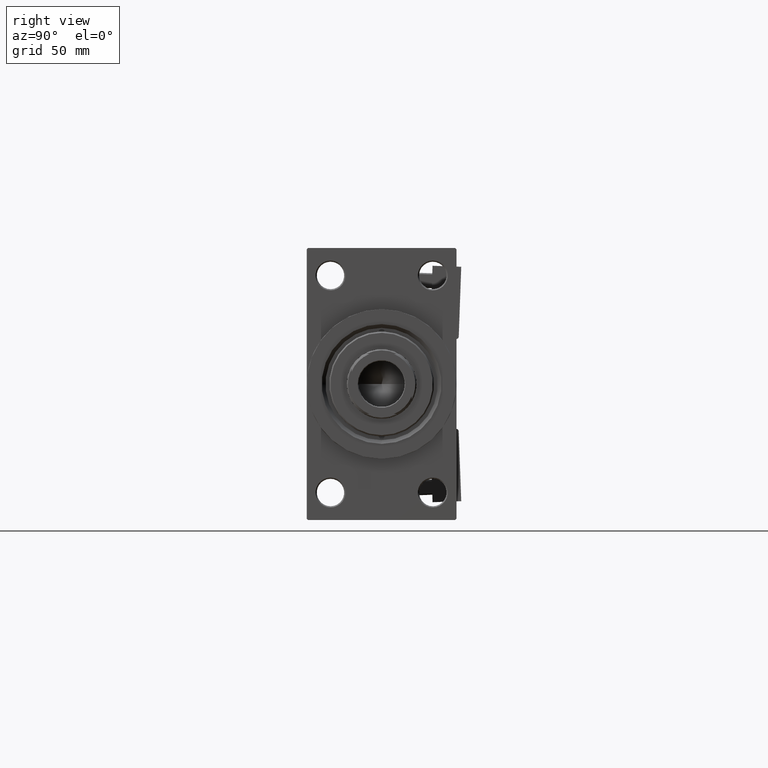
[diagram: clean part render]
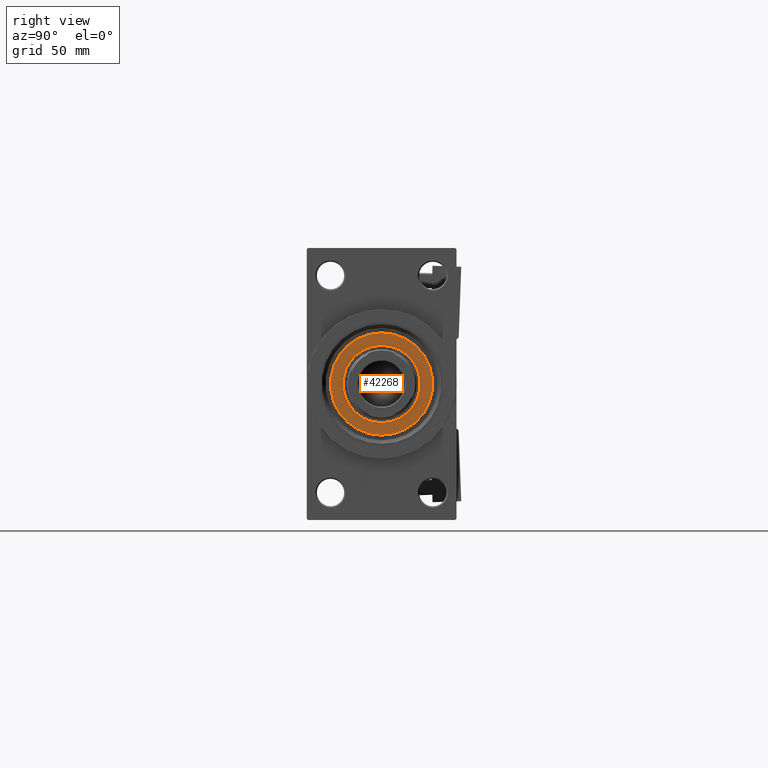
[diagram: same view with one face highlighted and labeled with its STEP entity id]
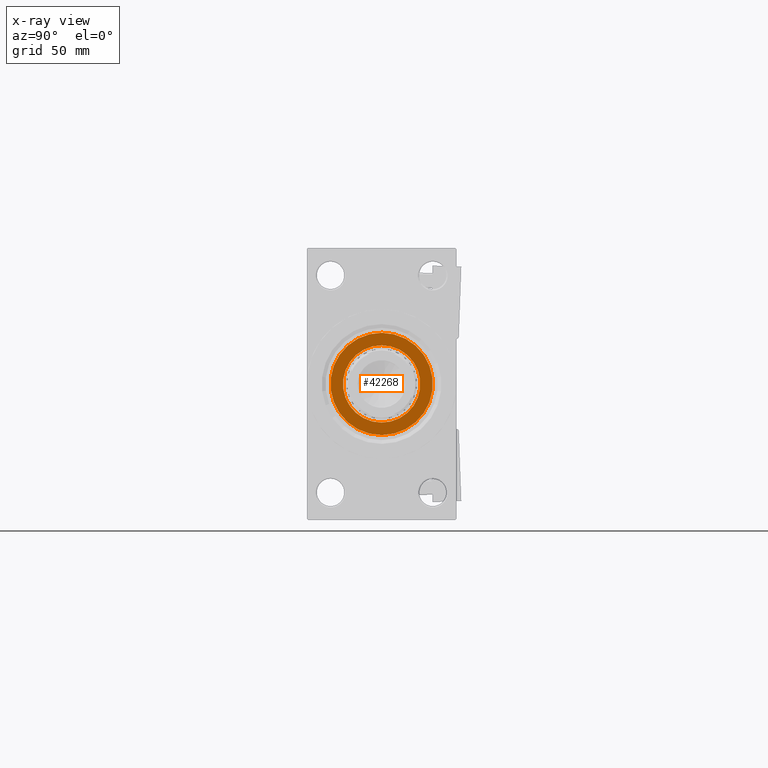
[diagram: x-ray of the same camera — body ghosted, the highlighted face saturated]
A machine part, right view. The second image highlights one B-rep face of the part: STEP entity #42268.
The next image is the same camera in x-ray: the body ghosted, the highlighted face saturated — about 0% of this face is hidden behind the body in this view.
In plain terms, the highlighted planar face has unit normal (1, -0, -0).
Its self-contained STEP definition (entity closure, byte-faithful):
#638 = DIRECTION ( 'NONE',  ( 0.000000000000000000, 0.000000000000000000, 1.000000000000000000 ) ) ;
#3065 = EDGE_CURVE ( 'NONE', #3993, #15905, #9542, .T. ) ;
#3993 = VERTEX_POINT ( 'NONE', #24938 ) ;
#4125 = VERTEX_POINT ( 'NONE', #45047 ) ;
#4518 = CARTESIAN_POINT ( 'NONE',  ( 0.000000000000000000, 0.000000000000000000, 55.26000000000000512 ) ) ;
#4662 = FACE_OUTER_BOUND ( 'NONE', #45439, .T. ) ;
#5942 = AXIS2_PLACEMENT_3D ( 'NONE', #14223, #10700, #6193 ) ;
#6108 = ORIENTED_EDGE ( 'NONE', *, *, #44389, .F. ) ;
#6193 = DIRECTION ( 'NONE',  ( 1.000000000000000000, 0.000000000000000000, 0.000000000000000000 ) ) ;
#7506 = CARTESIAN_POINT ( 'NONE',  ( 0.000000000000000000, 0.000000000000000000, 55.26000000000000512 ) ) ;
#8428 = FACE_BOUND ( 'NONE', #24154, .T. ) ;
#9542 = CIRCLE ( 'NONE', #45697, 15.50000000000000000 ) ;
#10700 = DIRECTION ( 'NONE',  ( 0.000000000000000000, 0.000000000000000000, 1.000000000000000000 ) ) ;
#14223 = CARTESIAN_POINT ( 'NONE',  ( 0.000000000000000000, 0.000000000000000000, 55.26000000000000512 ) ) ;
#15905 = VERTEX_POINT ( 'NONE', #36498 ) ;
#16586 = DIRECTION ( 'NONE',  ( 0.000000000000000000, 0.000000000000000000, 1.000000000000000000 ) ) ;
#19574 = CIRCLE ( 'NONE', #5942, 15.50000000000000000 ) ;
#20005 = DIRECTION ( 'NONE',  ( 1.000000000000000000, 0.000000000000000000, -0.000000000000000000 ) ) ;
#20038 = DIRECTION ( 'NONE',  ( 1.000000000000000000, 0.000000000000000000, 0.000000000000000000 ) ) ;
#20849 = CARTESIAN_POINT ( 'NONE',  ( 0.000000000000000000, 0.000000000000000000, 55.26000000000000512 ) ) ;
#24154 = EDGE_LOOP ( 'NONE', ( #6108, #29212 ) ) ;
#24938 = CARTESIAN_POINT ( 'NONE',  ( -15.50000000000000000, 1.898202538678397557E-15, 55.26000000000000512 ) ) ;
#25202 = AXIS2_PLACEMENT_3D ( 'NONE', #47686, #27814, #20038 ) ;
#26612 = VERTEX_POINT ( 'NONE', #33429 ) ;
#27814 = DIRECTION ( 'NONE',  ( 0.000000000000000000, 0.000000000000000000, 1.000000000000000000 ) ) ;
#29212 = ORIENTED_EDGE ( 'NONE', *, *, #3065, .F. ) ;
#31899 = DIRECTION ( 'NONE',  ( 1.000000000000000000, 0.000000000000000000, 0.000000000000000000 ) ) ;
#33429 = CARTESIAN_POINT ( 'NONE',  ( -20.50000000000000355, 0.000000000000000000, 55.26000000000000512 ) ) ;
#35163 = EDGE_CURVE ( 'NONE', #4125, #26612, #43445, .T. ) ;
#35649 = ORIENTED_EDGE ( 'NONE', *, *, #44227, .T. ) ;
#36498 = CARTESIAN_POINT ( 'NONE',  ( 15.50000000000000000, 0.000000000000000000, 55.26000000000000512 ) ) ;
#40439 = DIRECTION ( 'NONE',  ( 1.000000000000000000, 0.000000000000000000, 0.000000000000000000 ) ) ;
#40486 = ORIENTED_EDGE ( 'NONE', *, *, #35163, .T. ) ;
#42268 = ADVANCED_FACE ( 'NONE', ( #8428, #4662 ), #43369, .T. ) ;
#42844 = CIRCLE ( 'NONE', #25202, 20.50000000000000355 ) ;
#43369 = PLANE ( 'NONE',  #44417 ) ;
#43445 = CIRCLE ( 'NONE', #45064, 20.50000000000000355 ) ;
#44227 = EDGE_CURVE ( 'NONE', #26612, #4125, #42844, .T. ) ;
#44389 = EDGE_CURVE ( 'NONE', #15905, #3993, #19574, .T. ) ;
#44417 = AXIS2_PLACEMENT_3D ( 'NONE', #7506, #638, #20005 ) ;
#45047 = CARTESIAN_POINT ( 'NONE',  ( 20.50000000000000355, 2.541142108230758269E-15, 55.26000000000000512 ) ) ;
#45064 = AXIS2_PLACEMENT_3D ( 'NONE', #4518, #16586, #31899 ) ;
#45439 = EDGE_LOOP ( 'NONE', ( #35649, #40486 ) ) ;
#45697 = AXIS2_PLACEMENT_3D ( 'NONE', #20849, #47988, #40439 ) ;
#47686 = CARTESIAN_POINT ( 'NONE',  ( 0.000000000000000000, 0.000000000000000000, 55.26000000000000512 ) ) ;
#47988 = DIRECTION ( 'NONE',  ( 0.000000000000000000, 0.000000000000000000, 1.000000000000000000 ) ) ;